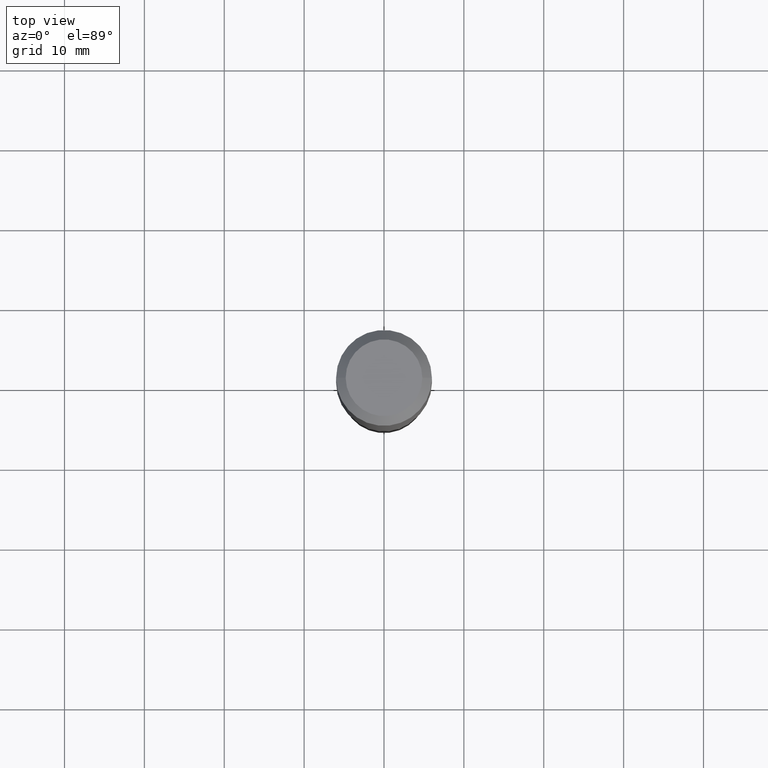
[diagram: clean part render]
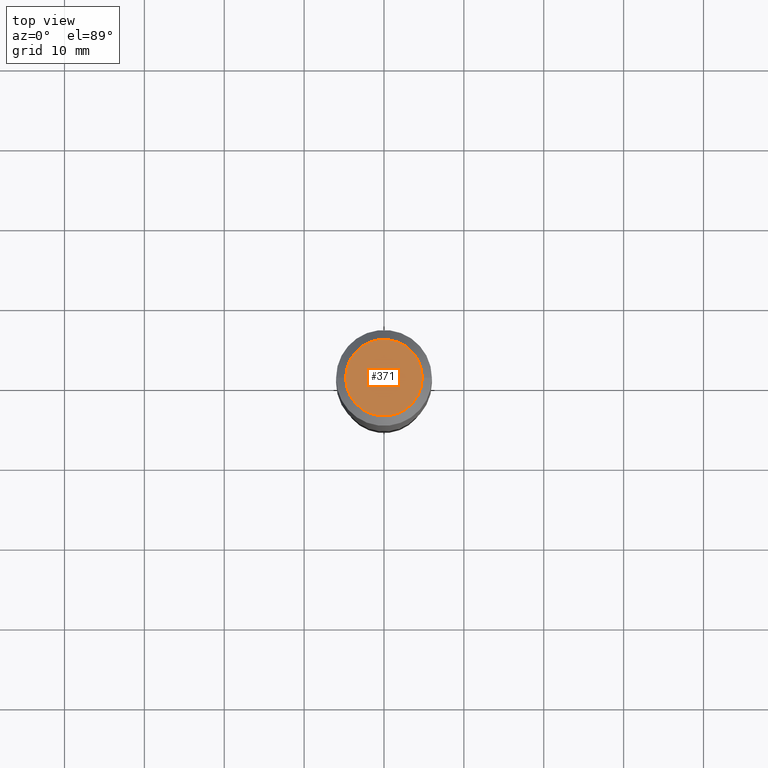
[diagram: same view with one face highlighted and labeled with its STEP entity id]
A machine part, top view. The second image highlights one B-rep face of the part: STEP entity #371.
In plain terms, the highlighted planar face has unit normal (0, -0, -1).
Its self-contained STEP definition (entity closure, byte-faithful):
#27 = DIRECTION ( 'NONE',  ( 1.000000000000000000, -6.982962677686266711E-15, 4.876185090822587894E-29 ) ) ;
#32 = DIRECTION ( 'NONE',  ( -2.445468806185136597E-29, 3.491481338843145583E-15, 1.000000000000000000 ) ) ;
#47 = EDGE_CURVE ( 'NONE', #494, #125, #111, .T. ) ;
#58 = DIRECTION ( 'NONE',  ( -1.000000000000000000, 6.982962677686265922E-15, -4.876176775795935793E-29 ) ) ;
#111 = CIRCLE ( 'NONE', #426, 0.1889600000000000168 ) ;
#125 = VERTEX_POINT ( 'NONE', #341 ) ;
#151 = CARTESIAN_POINT ( 'NONE',  ( -4.713871149261273121E-47, 6.730158695841826722E-33, 1.927594061857931128E-18 ) ) ;
#178 = CARTESIAN_POINT ( 'NONE',  ( -0.1889600000000000168, 1.401969416799070942E-15, 3.855188123706346622E-18 ) ) ;
#199 = EDGE_CURVE ( 'NONE', #125, #494, #472, .T. ) ;
#200 = ORIENTED_EDGE ( 'NONE', *, *, #199, .T. ) ;
#213 = DIRECTION ( 'NONE',  ( -2.445468806185136597E-29, 3.491481338843145583E-15, 1.000000000000000000 ) ) ;
#255 = PLANE ( 'NONE',  #302 ) ;
#302 = AXIS2_PLACEMENT_3D ( 'NONE', #151, #468, #58 ) ;
#312 = FACE_OUTER_BOUND ( 'NONE', #497, .T. ) ;
#341 = CARTESIAN_POINT ( 'NONE',  ( 0.1889600000000000168, -1.540873453589747738E-15, 3.855188123725863225E-18 ) ) ;
#346 = CARTESIAN_POINT ( 'NONE',  ( -9.427742298522546243E-47, 1.346031739168365344E-32, 3.855188123715862256E-18 ) ) ;
#371 = ADVANCED_FACE ( 'NONE', ( #312 ), #255, .F. ) ;
#385 = CARTESIAN_POINT ( 'NONE',  ( -9.427742298522546243E-47, 1.346031739168365344E-32, 3.855188123715862256E-18 ) ) ;
#391 = AXIS2_PLACEMENT_3D ( 'NONE', #385, #32, #27 ) ;
#426 = AXIS2_PLACEMENT_3D ( 'NONE', #346, #213, #508 ) ;
#450 = ORIENTED_EDGE ( 'NONE', *, *, #47, .T. ) ;
#468 = DIRECTION ( 'NONE',  ( 2.438088387897960049E-29, -3.491481338843145188E-15, -1.000000000000000000 ) ) ;
#472 = CIRCLE ( 'NONE', #391, 0.1889600000000000168 ) ;
#494 = VERTEX_POINT ( 'NONE', #178 ) ;
#497 = EDGE_LOOP ( 'NONE', ( #450, #200 ) ) ;
#508 = DIRECTION ( 'NONE',  ( 1.000000000000000000, -6.982962677686266711E-15, 4.876185090822587894E-29 ) ) ;